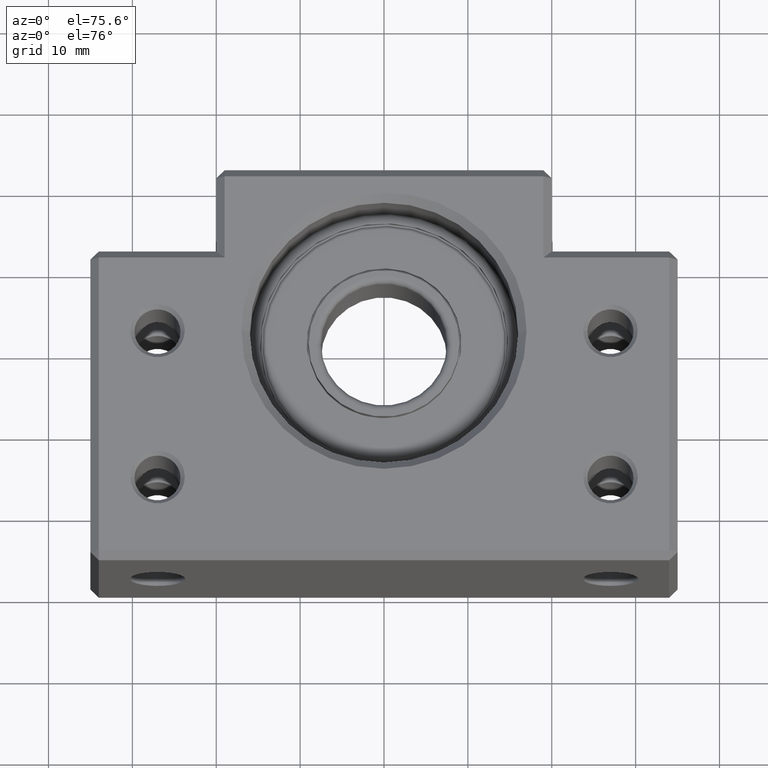
[diagram: clean part render]
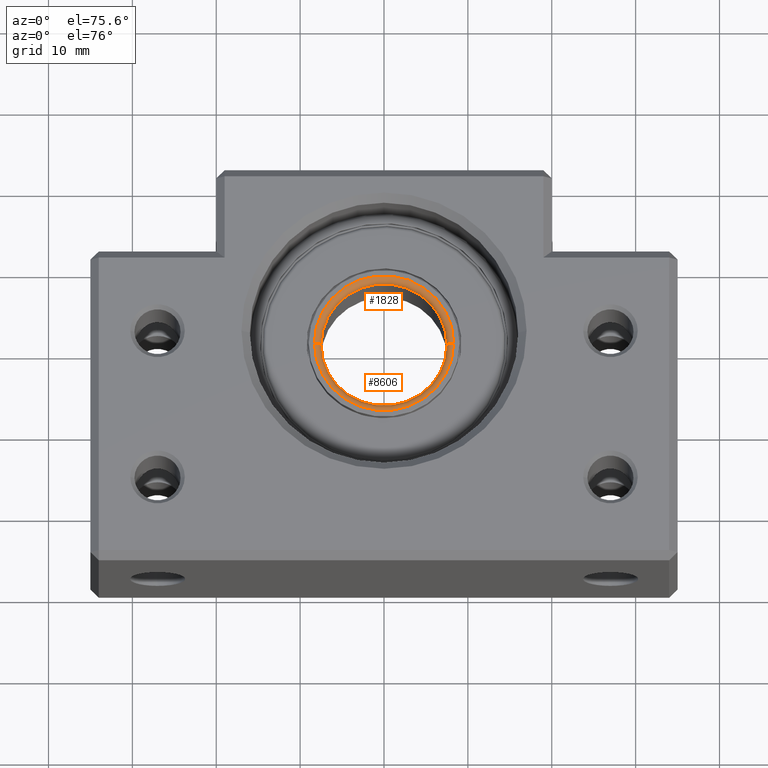
[diagram: same view with one multi-face feature highlighted, each face labeled with its STEP entity id]
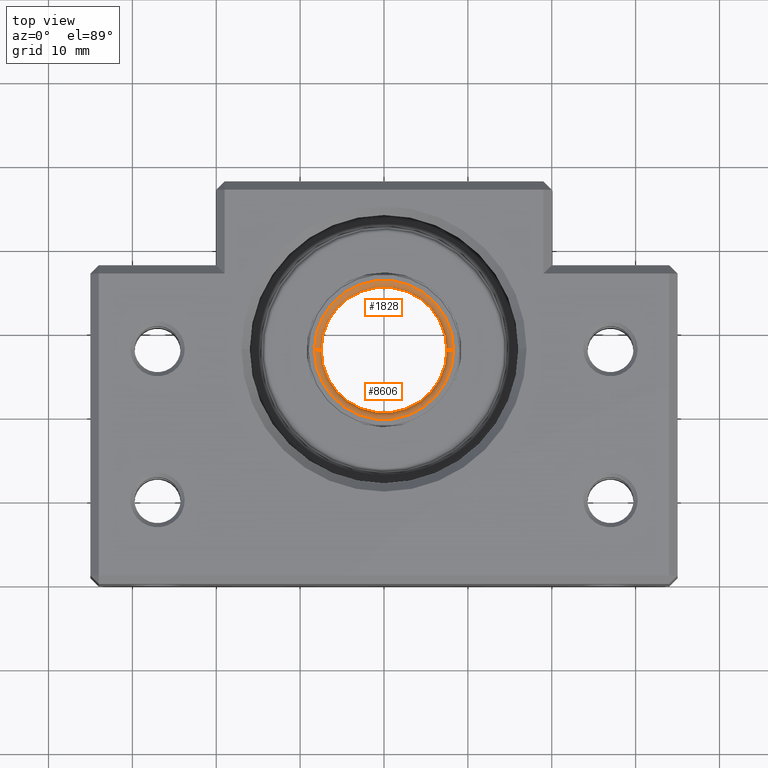
[diagram: same view with one multi-face feature highlighted, each face labeled with its STEP entity id]
A machine part, auxiliary view. The highlighted faces form ONE feature: a constant-radius fillet chain: 2 tangent blend faces with common blend radius 0.8 mm. The faces share edges in the B-rep.
A second angle (top view) of the same feature is appended — it is thin or edge-on in the first view.
Their STEP definitions:
[1] entity #8606 (Torus):
#1999 = VERTEX_POINT ( 'NONE', #5835 ) ;
#3218 = EDGE_CURVE ( 'NONE', #9166, #9329, #5865, .T. ) ;
#5835 = CARTESIAN_POINT ( 'NONE',  ( 7.500000000000013300, 27.99999999999999600, 3.200000000000013900 ) ) ;
#5861 = DIRECTION ( 'NONE',  ( 0.0000000000000000000, 0.0000000000000000000, -1.000000000000000000 ) ) ;
#5862 = DIRECTION ( 'NONE',  ( -0.0000000000000000000, -1.000000000000000000, -0.0000000000000000000 ) ) ;
#5863 = CARTESIAN_POINT ( 'NONE',  ( -8.299999999999986500, 27.99999999999999600, 3.200000000000013900 ) ) ;
#5864 = AXIS2_PLACEMENT_3D ( 'NONE', #5863, #5862, #5861 ) ;
#5865 = CIRCLE ( 'NONE', #5864, 0.7999999999999999300 ) ;
#6360 = CIRCLE ( 'NONE', #6429, 8.300000000000000700 ) ;
#6402 = DIRECTION ( 'NONE',  ( -1.000000000000000000, 0.0000000000000000000, 0.0000000000000000000 ) ) ;
#6403 = DIRECTION ( 'NONE',  ( 0.0000000000000000000, 0.0000000000000000000, -1.000000000000000000 ) ) ;
#6404 = CARTESIAN_POINT ( 'NONE',  ( 1.369502252791130900E-014, 27.99999999999999600, 3.200000000000013900 ) ) ;
#6405 = AXIS2_PLACEMENT_3D ( 'NONE', #6404, #6403, #6402 ) ;
#6407 = TOROIDAL_SURFACE ( 'NONE', #6405, 8.300000000000000700, 0.8000000000000000400 ) ;
#6412 = FACE_OUTER_BOUND ( 'NONE', #8600, .T. ) ;
#6426 = DIRECTION ( 'NONE',  ( -1.000000000000000000, 0.0000000000000000000, 0.0000000000000000000 ) ) ;
#6427 = DIRECTION ( 'NONE',  ( 0.0000000000000000000, 0.0000000000000000000, -1.000000000000000000 ) ) ;
#6428 = CARTESIAN_POINT ( 'NONE',  ( 1.369502252791130900E-014, 27.99999999999999600, 4.000000000000014200 ) ) ;
#6429 = AXIS2_PLACEMENT_3D ( 'NONE', #6428, #6427, #6426 ) ;
#7627 = CARTESIAN_POINT ( 'NONE',  ( -7.499999999999985800, 27.99999999999999600, 3.200000000000013900 ) ) ;
#7654 = DIRECTION ( 'NONE',  ( -1.000000000000000000, 0.0000000000000000000, 0.0000000000000000000 ) ) ;
#7655 = DIRECTION ( 'NONE',  ( -0.0000000000000000000, -0.0000000000000000000, 1.000000000000000000 ) ) ;
#7656 = CARTESIAN_POINT ( 'NONE',  ( 1.369502252791130900E-014, 27.99999999999999600, 3.200000000000013900 ) ) ;
#7657 = AXIS2_PLACEMENT_3D ( 'NONE', #7656, #7655, #7654 ) ;
#7658 = CIRCLE ( 'NONE', #7657, 7.500000000000000000 ) ;
#7952 = CARTESIAN_POINT ( 'NONE',  ( 8.300000000000013100, 27.99999999999999600, 4.000000000000014200 ) ) ;
#7953 = CARTESIAN_POINT ( 'NONE',  ( -8.299999999999986500, 27.99999999999999600, 4.000000000000014200 ) ) ;
#7954 = DIRECTION ( 'NONE',  ( -1.000000000000000000, 0.0000000000000000000, 0.0000000000000000000 ) ) ;
#7955 = DIRECTION ( 'NONE',  ( -1.224606353822377300E-016, 1.000000000000000000, 0.0000000000000000000 ) ) ;
#7956 = CARTESIAN_POINT ( 'NONE',  ( 8.300000000000013100, 27.99999999999999600, 3.200000000000013900 ) ) ;
#7957 = AXIS2_PLACEMENT_3D ( 'NONE', #7956, #7955, #7954 ) ;
#7958 = CIRCLE ( 'NONE', #7957, 0.8000000000000003800 ) ;
#8591 = EDGE_CURVE ( 'NONE', #9330, #9329, #6360, .T. ) ;
#8597 = ORIENTED_EDGE ( 'NONE', *, *, #9327, .F. ) ;
#8598 = ORIENTED_EDGE ( 'NONE', *, *, #9179, .F. ) ;
#8599 = ORIENTED_EDGE ( 'NONE', *, *, #3218, .T. ) ;
#8600 = EDGE_LOOP ( 'NONE', ( #8597, #8598, #8599, #8601 ) ) ;
#8601 = ORIENTED_EDGE ( 'NONE', *, *, #8591, .F. ) ;
#8606 = ADVANCED_FACE ( 'NONE', ( #6412 ), #6407, .T. ) ;
#9166 = VERTEX_POINT ( 'NONE', #7627 ) ;
#9179 = EDGE_CURVE ( 'NONE', #9166, #1999, #7658, .T. ) ;
#9327 = EDGE_CURVE ( 'NONE', #1999, #9330, #7958, .T. ) ;
#9329 = VERTEX_POINT ( 'NONE', #7953 ) ;
#9330 = VERTEX_POINT ( 'NONE', #7952 ) ;
[2] entity #1828 (Torus):
#1828 = ADVANCED_FACE ( 'NONE', ( #5464 ), #5463, .T. ) ;
#1936 = EDGE_CURVE ( 'NONE', #1999, #9166, #5650, .T. ) ;
#1973 = EDGE_LOOP ( 'NONE', ( #1983, #9167, #9328, #3248 ) ) ;
#1983 = ORIENTED_EDGE ( 'NONE', *, *, #1936, .F. ) ;
#1999 = VERTEX_POINT ( 'NONE', #5835 ) ;
#3218 = EDGE_CURVE ( 'NONE', #9166, #9329, #5865, .T. ) ;
#3248 = ORIENTED_EDGE ( 'NONE', *, *, #3218, .F. ) ;
#5458 = DIRECTION ( 'NONE',  ( -1.000000000000000000, 0.0000000000000000000, 0.0000000000000000000 ) ) ;
#5459 = DIRECTION ( 'NONE',  ( 0.0000000000000000000, 0.0000000000000000000, -1.000000000000000000 ) ) ;
#5460 = CARTESIAN_POINT ( 'NONE',  ( 1.369502252791130900E-014, 27.99999999999999600, 3.200000000000013900 ) ) ;
#5461 = AXIS2_PLACEMENT_3D ( 'NONE', #5460, #5459, #5458 ) ;
#5463 = TOROIDAL_SURFACE ( 'NONE', #5461, 8.300000000000000700, 0.8000000000000000400 ) ;
#5464 = FACE_OUTER_BOUND ( 'NONE', #1973, .T. ) ;
#5646 = DIRECTION ( 'NONE',  ( -1.000000000000000000, 0.0000000000000000000, 0.0000000000000000000 ) ) ;
#5647 = DIRECTION ( 'NONE',  ( -0.0000000000000000000, -0.0000000000000000000, 1.000000000000000000 ) ) ;
#5648 = CARTESIAN_POINT ( 'NONE',  ( 1.369502252791130900E-014, 27.99999999999999600, 3.200000000000013900 ) ) ;
#5649 = AXIS2_PLACEMENT_3D ( 'NONE', #5648, #5647, #5646 ) ;
#5650 = CIRCLE ( 'NONE', #5649, 7.500000000000000000 ) ;
#5835 = CARTESIAN_POINT ( 'NONE',  ( 7.500000000000013300, 27.99999999999999600, 3.200000000000013900 ) ) ;
#5861 = DIRECTION ( 'NONE',  ( 0.0000000000000000000, 0.0000000000000000000, -1.000000000000000000 ) ) ;
#5862 = DIRECTION ( 'NONE',  ( -0.0000000000000000000, -1.000000000000000000, -0.0000000000000000000 ) ) ;
#5863 = CARTESIAN_POINT ( 'NONE',  ( -8.299999999999986500, 27.99999999999999600, 3.200000000000013900 ) ) ;
#5864 = AXIS2_PLACEMENT_3D ( 'NONE', #5863, #5862, #5861 ) ;
#5865 = CIRCLE ( 'NONE', #5864, 0.7999999999999999300 ) ;
#7627 = CARTESIAN_POINT ( 'NONE',  ( -7.499999999999985800, 27.99999999999999600, 3.200000000000013900 ) ) ;
#7941 = DIRECTION ( 'NONE',  ( -1.000000000000000000, 0.0000000000000000000, 0.0000000000000000000 ) ) ;
#7942 = DIRECTION ( 'NONE',  ( 0.0000000000000000000, 0.0000000000000000000, -1.000000000000000000 ) ) ;
#7943 = CARTESIAN_POINT ( 'NONE',  ( 1.369502252791130900E-014, 27.99999999999999600, 4.000000000000014200 ) ) ;
#7944 = AXIS2_PLACEMENT_3D ( 'NONE', #7943, #7942, #7941 ) ;
#7945 = CIRCLE ( 'NONE', #7944, 8.300000000000000700 ) ;
#7952 = CARTESIAN_POINT ( 'NONE',  ( 8.300000000000013100, 27.99999999999999600, 4.000000000000014200 ) ) ;
#7953 = CARTESIAN_POINT ( 'NONE',  ( -8.299999999999986500, 27.99999999999999600, 4.000000000000014200 ) ) ;
#7954 = DIRECTION ( 'NONE',  ( -1.000000000000000000, 0.0000000000000000000, 0.0000000000000000000 ) ) ;
#7955 = DIRECTION ( 'NONE',  ( -1.224606353822377300E-016, 1.000000000000000000, 0.0000000000000000000 ) ) ;
#7956 = CARTESIAN_POINT ( 'NONE',  ( 8.300000000000013100, 27.99999999999999600, 3.200000000000013900 ) ) ;
#7957 = AXIS2_PLACEMENT_3D ( 'NONE', #7956, #7955, #7954 ) ;
#7958 = CIRCLE ( 'NONE', #7957, 0.8000000000000003800 ) ;
#9166 = VERTEX_POINT ( 'NONE', #7627 ) ;
#9167 = ORIENTED_EDGE ( 'NONE', *, *, #9327, .T. ) ;
#9327 = EDGE_CURVE ( 'NONE', #1999, #9330, #7958, .T. ) ;
#9328 = ORIENTED_EDGE ( 'NONE', *, *, #9333, .F. ) ;
#9329 = VERTEX_POINT ( 'NONE', #7953 ) ;
#9330 = VERTEX_POINT ( 'NONE', #7952 ) ;
#9333 = EDGE_CURVE ( 'NONE', #9329, #9330, #7945, .T. ) ;